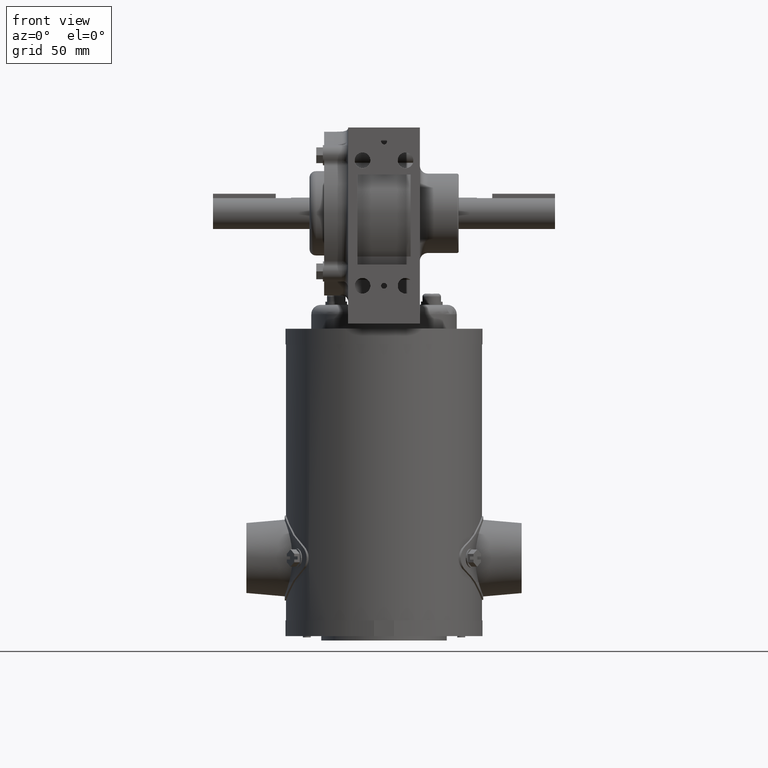
[diagram: clean part render]
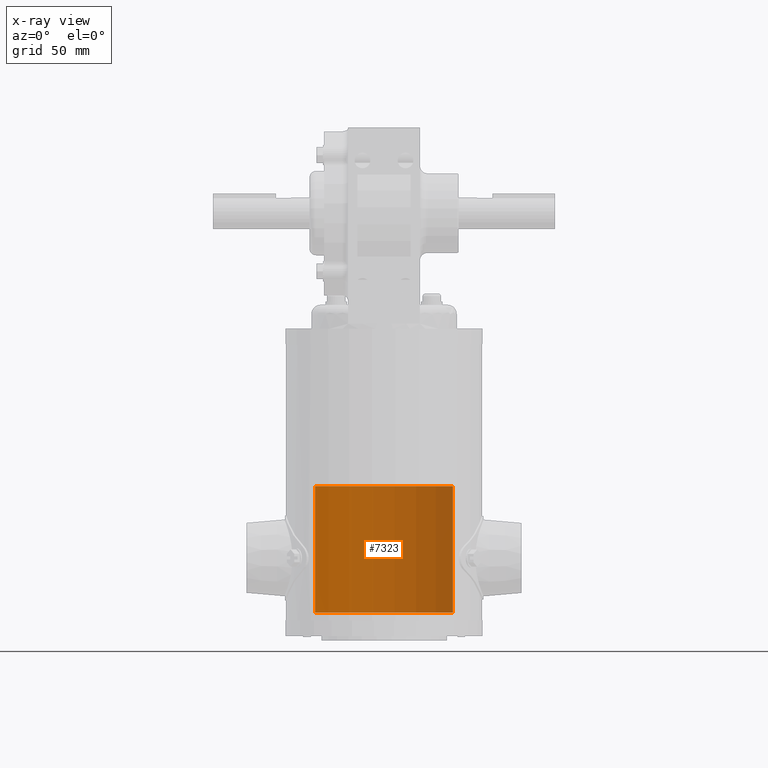
[diagram: x-ray — body ghosted, one internal face saturated and labeled with its STEP entity id]
A machine part, front view, then the same camera in x-ray: the body is ghosted and one INTERNAL B-rep face — a face not visible from any outside direction — is saturated and labeled: STEP entity #7323.
In plain terms, the highlighted cylindrical surface (partial cylindrical patch) has radius 39.6875 mm, axis along (-0, -0, -1).
Its self-contained STEP definition (entity closure, byte-faithful):
#23 = VECTOR ( 'NONE', #1701, 39.37007874015748100 ) ;
#331 = ORIENTED_EDGE ( 'NONE', *, *, #833, .F. ) ;
#368 = DIRECTION ( 'NONE',  ( 1.000000000000000000, 0.0000000000000000000, 0.0000000000000000000 ) ) ;
#833 = EDGE_CURVE ( 'NONE', #15310, #14179, #6769, .T. ) ;
#928 = CIRCLE ( 'NONE', #18724, 1.562500000000055700 ) ;
#1195 = ORIENTED_EDGE ( 'NONE', *, *, #27500, .T. ) ;
#1533 = CYLINDRICAL_SURFACE ( 'NONE', #18716, 1.562500000000055700 ) ;
#1646 = DIRECTION ( 'NONE',  ( 1.000000000000000000, 0.0000000000000000000, 0.0000000000000000000 ) ) ;
#1701 = DIRECTION ( 'NONE',  ( -0.0000000000000000000, -0.0000000000000000000, -1.000000000000000000 ) ) ;
#6766 = EDGE_CURVE ( 'NONE', #14179, #14983, #26090, .T. ) ;
#6769 = LINE ( 'NONE', #12349, #11758 ) ;
#7323 = ADVANCED_FACE ( 'NONE', ( #26709 ), #1533, .F. ) ;
#8073 = CARTESIAN_POINT ( 'NONE',  ( -1.098750000000000600, 1.110925149368833000, -4.046899999999999100 ) ) ;
#9259 = CARTESIAN_POINT ( 'NONE',  ( 1.098750000000004600, 1.110925149368837000, -6.059999999999999600 ) ) ;
#10204 = DIRECTION ( 'NONE',  ( -0.0000000000000000000, -0.0000000000000000000, -1.000000000000000000 ) ) ;
#10345 = DIRECTION ( 'NONE',  ( -0.0000000000000000000, -0.0000000000000000000, -1.000000000000000000 ) ) ;
#10435 = DIRECTION ( 'NONE',  ( -1.000000000000000000, 0.0000000000000000000, 0.0000000000000000000 ) ) ;
#11758 = VECTOR ( 'NONE', #10204, 39.37007874015748100 ) ;
#12349 = CARTESIAN_POINT ( 'NONE',  ( 1.098750000000004600, 1.110925149368837000, -4.046899999999999100 ) ) ;
#13086 = DIRECTION ( 'NONE',  ( -0.0000000000000000000, 0.0000000000000000000, 1.000000000000000000 ) ) ;
#13185 = AXIS2_PLACEMENT_3D ( 'NONE', #26990, #14340, #1646 ) ;
#13400 = ORIENTED_EDGE ( 'NONE', *, *, #6766, .F. ) ;
#14037 = CARTESIAN_POINT ( 'NONE',  ( -1.098750000000000600, 1.110925149368833000, -4.046899999999999100 ) ) ;
#14179 = VERTEX_POINT ( 'NONE', #9259 ) ;
#14340 = DIRECTION ( 'NONE',  ( -0.0000000000000000000, 0.0000000000000000000, 1.000000000000000000 ) ) ;
#14983 = VERTEX_POINT ( 'NONE', #21612 ) ;
#15310 = VERTEX_POINT ( 'NONE', #22516 ) ;
#18716 = AXIS2_PLACEMENT_3D ( 'NONE', #23101, #10345, #10435 ) ;
#18724 = AXIS2_PLACEMENT_3D ( 'NONE', #25732, #13086, #368 ) ;
#21612 = CARTESIAN_POINT ( 'NONE',  ( -1.098750000000000600, 1.110925149368833000, -6.059999999999999600 ) ) ;
#21895 = LINE ( 'NONE', #8073, #23 ) ;
#22516 = CARTESIAN_POINT ( 'NONE',  ( 1.098750000000004600, 1.110925149368837000, -4.046899999999999100 ) ) ;
#22765 = EDGE_CURVE ( 'NONE', #23856, #14983, #21895, .T. ) ;
#23101 = CARTESIAN_POINT ( 'NONE',  ( 0.0000000000000000000, 0.0000000000000000000, -4.046899999999999100 ) ) ;
#23730 = EDGE_LOOP ( 'NONE', ( #13400, #331, #1195, #27101 ) ) ;
#23856 = VERTEX_POINT ( 'NONE', #14037 ) ;
#25732 = CARTESIAN_POINT ( 'NONE',  ( 0.0000000000000000000, 0.0000000000000000000, -4.046899999999999100 ) ) ;
#26090 = CIRCLE ( 'NONE', #13185, 1.562500000000055700 ) ;
#26709 = FACE_OUTER_BOUND ( 'NONE', #23730, .T. ) ;
#26990 = CARTESIAN_POINT ( 'NONE',  ( 0.0000000000000000000, 0.0000000000000000000, -6.059999999999999600 ) ) ;
#27101 = ORIENTED_EDGE ( 'NONE', *, *, #22765, .T. ) ;
#27500 = EDGE_CURVE ( 'NONE', #15310, #23856, #928, .T. ) ;